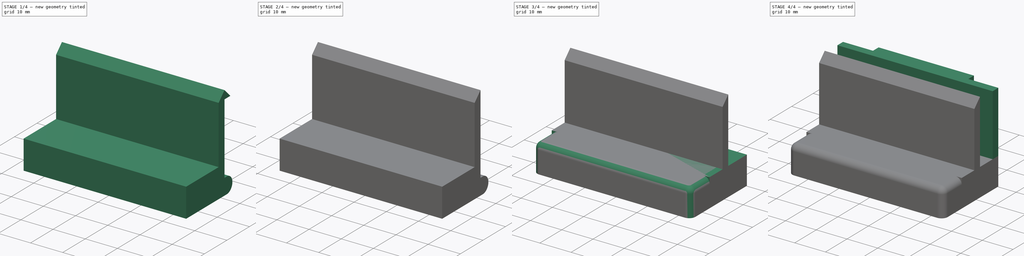
[diagram: build sequence overview — one tinted view per stage of 4, left to right]
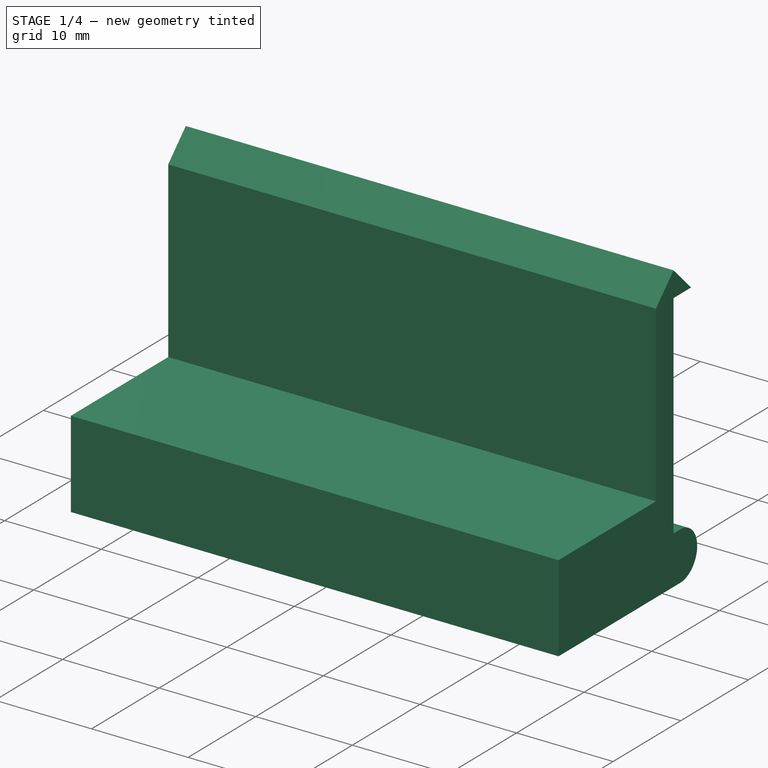
[diagram: stage 1 of 4 — iso view after this stage's code; geometry added in this stage tinted green]
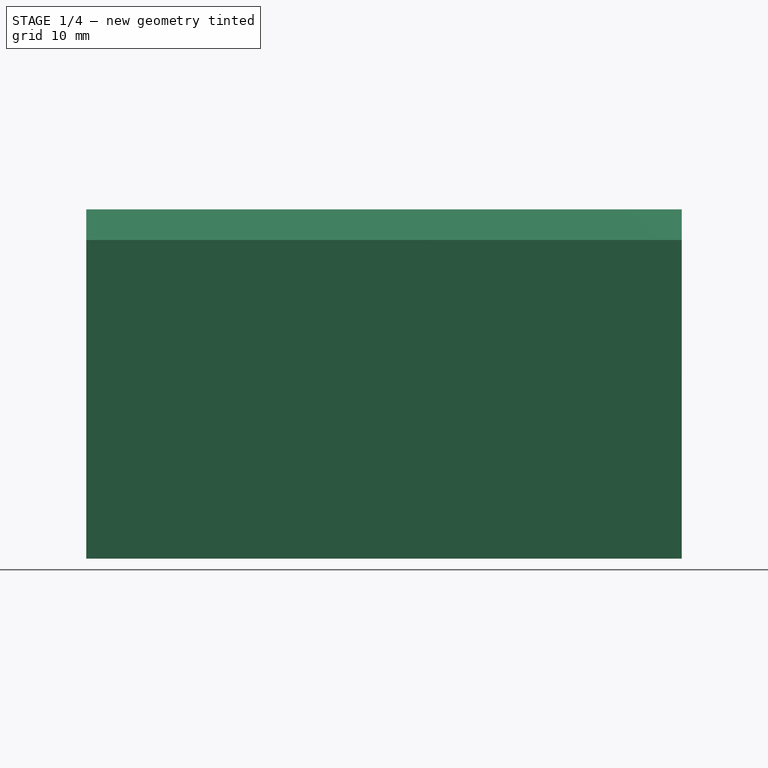
[diagram: stage 1 of 4 — front view after this stage's code; geometry added in this stage tinted green]
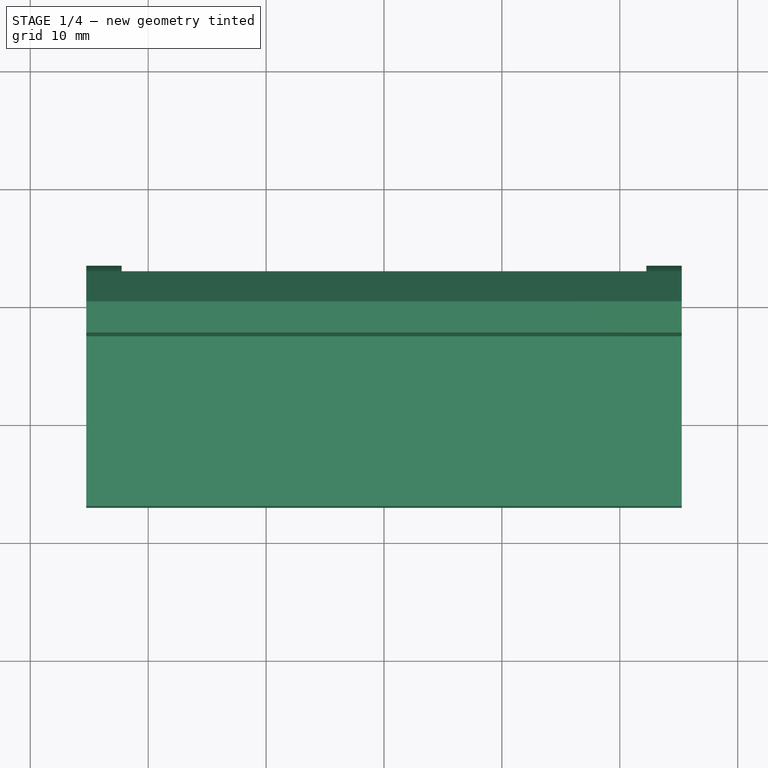
[diagram: stage 1 of 4 — top view after this stage's code; geometry added in this stage tinted green]
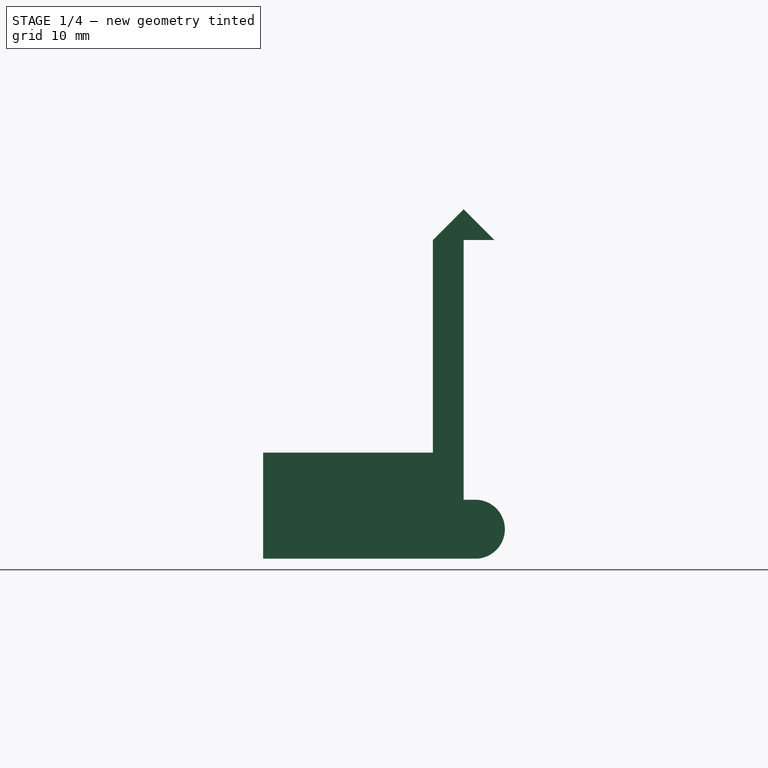
[diagram: stage 1 of 4 — right view after this stage's code; geometry added in this stage tinted green]
FCSTD DOCUMENT  (FreeCAD 0.20R)
Label: GMD-7012 Lock
License: All rights reserved
LicenseURL: http://en.wikipedia.org/wiki/All_rights_reserved
objects: Sketcher::SketchObject×9, PartDesign::Pad×6, PartDesign::Pocket×3, PartDesign::Body×2, App::Part×2, Part::Feature×2, Part::Refine×2, PartDesign::Fillet×1
note: 35 computed .brp shape members not serialized (recipe doc carries the construction recipe); baked Part::Feature solids carry a one-line shape summary decoded from their .brp

FEATURE [PartDesign::Body] Body
  Group = -> [Sketch,Pad,Sketch001,Pad001,Sketch002,Pad002]
  Origin = -> Origin002
  Tip = -> Pad002
FEATURE [App::Part] Part001
  Group = -> [Body]
  Origin = -> Origin001
FEATURE [Part::Feature] Part001_solid  label="Part001 (Solid)"
  shape: bbox 50.5 x 19.6 x 29 mm, 19 faces (baked)
FEATURE [Part::Refine] Part001_solid001  label="Part001 (Solid)001"
  Source = -> Part001_solid
FEATURE [Sketcher::SketchObject] Sketch003
  FullyConstrained = true
  MapMode = 5
  Placement = pos=(0,0,0) rot=(0.57735,0.57735,0.57735;2.0944rad)
  Support = -> [YZ_Plane003]
  sketch-geometry (10):
    g0: LineSegment StartX=-2.6 StartY=27.03 StartZ=0 EndX=-2.6 EndY=9 EndZ=0
    g1: LineSegment StartX=-2.6 StartY=9 StartZ=0 EndX=-17 EndY=9 EndZ=0
    g2: LineSegment StartX=-17 StartY=9 StartZ=0 EndX=-17 EndY=0 EndZ=0
    g3: LineSegment StartX=0 StartY=5 StartZ=0 EndX=0 EndY=27.03 EndZ=0
    g4: LineSegment StartX=0 StartY=27.03 StartZ=0 EndX=2.6 EndY=27.03 EndZ=0
    g5: LineSegment StartX=2.6 StartY=27.03 StartZ=0 EndX=0 EndY=29.63 EndZ=0
    g6: LineSegment StartX=0 StartY=29.63 StartZ=0 EndX=-2.6 EndY=27.03 EndZ=0
    g7: ArcOfCircle CenterX=1 CenterY=2.5 CenterZ=0 NormalX=0 NormalY=0 NormalZ=1 AngleXU=0 Radius=2.5 StartAngle=4.71239 EndAngle=7.85398
    g8: LineSegment StartX=-17 StartY=0 StartZ=0 EndX=1 EndY=0 EndZ=0
    g9: LineSegment StartX=0 StartY=5 StartZ=0 EndX=1 EndY=5 EndZ=0
  constraints (31):
    c: Coincident(g0,g1)
    c: Horizontal(g1)
    c: Coincident(g1,g2)
    c: PointOnObject(g2,g-1)
    c: Vertical(g2)
    c: Vertical(g3)
    c: Coincident(g3,g4)
    c: Horizontal(g4)
    c: Coincident(g4,g5)
    c: Coincident(g5,g6)
    c: Coincident(g0,g6)
    c: DistanceY(g2,g2) = 9
    c: DistanceX(g2,g3) = 17
    c: PointOnObject(g5,g-2)
    c: DistanceX(g0) = -2.6
    c: Parallel(g0,g-2)
    c: DistanceY(g0,g5) = 2.6
    c: Equal(g5,g6)
    c: DistanceY(g4,g5) = 2.6
    c: Diameter(g7) = 5
    c: PointOnObject(g7,g-1)
    c: Coincident(g8,g2)
    c: Coincident(g8,g7)
    c: DistanceX(g7) = 1
    c: PointOnObject(g3,g-2)
    c: Coincident(g9,g3)
    c: Coincident(g9,g7)
    c: Parallel(g9,g-1)
    c: DistanceX(g8,g8) = 18
    c: DistanceX(g9,g9) = 1
    c: DistanceY(g3,g3) = 22.03
FEATURE [PartDesign::Pad] Pad003
  Direction = (1,-2e-16,3e-16)
  Length = 50.5
  Length2 = 10
  Midplane = true
  Placement = pos=(0,0,0) rot=(0.57735,0.57735,0.57735;2.0944rad)
  Profile = -> Sketch003
  ReferenceAxis = -> Sketch003 [N_Axis]
  Type = 0
FEATURE [Sketcher::SketchObject] Sketch008
  ExternalGeometry = -> [Pad003]
  FullyConstrained = true
  MapMode = 5
  Placement = pos=(0,0,0) rot=(0.707107,0.707107,0;3.14159rad)
  Support = -> [Pad003]
  sketch-geometry (4):
    g0: LineSegment StartX=-15 StartY=22.25 StartZ=0 EndX=10 EndY=22.25 EndZ=0
    g1: LineSegment StartX=10 StartY=22.25 StartZ=0 EndX=10 EndY=-22.25 EndZ=0
    g2: LineSegment StartX=10 StartY=-22.25 StartZ=0 EndX=-15 EndY=-22.25 EndZ=0
    g3: LineSegment StartX=-15 StartY=-22.25 StartZ=0 EndX=-15 EndY=22.25 EndZ=0
  constraints (12):
    c: Coincident(g0,g1)
    c: Coincident(g1,g2)
    c: Coincident(g2,g3)
    c: Coincident(g3,g0)
    c: Horizontal(g0)
    c: Horizontal(g2)
    c: Vertical(g1)
    c: Vertical(g3)
    c: DistanceX(g-3,g0) = 2
    c: DistanceY(g0,g-3) = 3
    c: DistanceY(g-4,g2) = 3
    c: DistanceX(g2,g2) = 25
FEATURE [PartDesign::Pocket] Pocket
  BaseFeature = -> Pad003
  Direction = (-4e-16,6e-16,1)
  Length = 5
  Length2 = 5
  Placement = pos=(0,0,0) rot=(0.57735,0.57735,0.57735;2.0944rad)
  Profile = -> Sketch008
  ReferenceAxis = -> Sketch008 [N_Axis]
  Type = 0
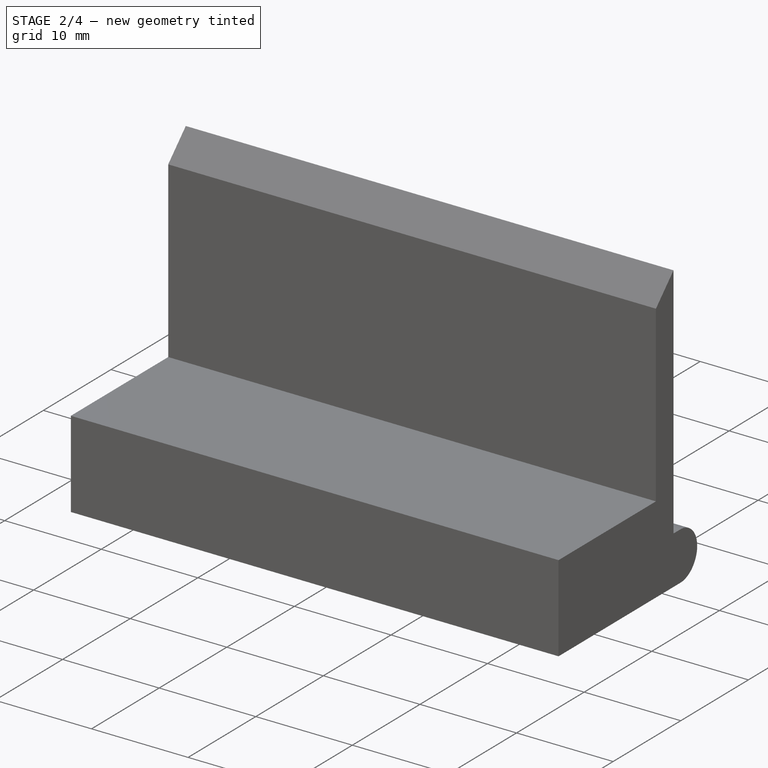
[diagram: stage 2 of 4 — iso view after this stage's code; geometry added in this stage tinted green]
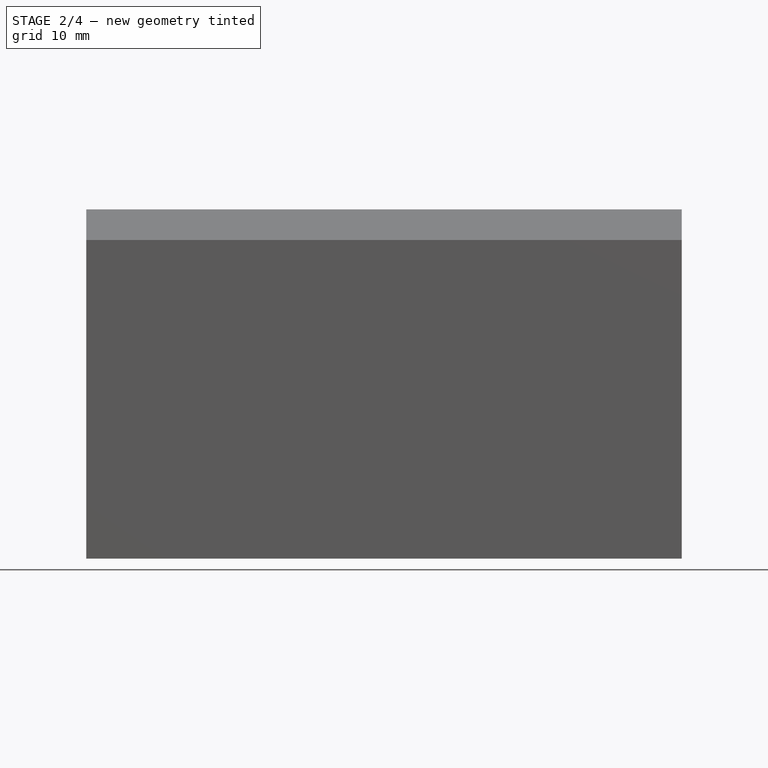
[diagram: stage 2 of 4 — front view after this stage's code; geometry added in this stage tinted green]
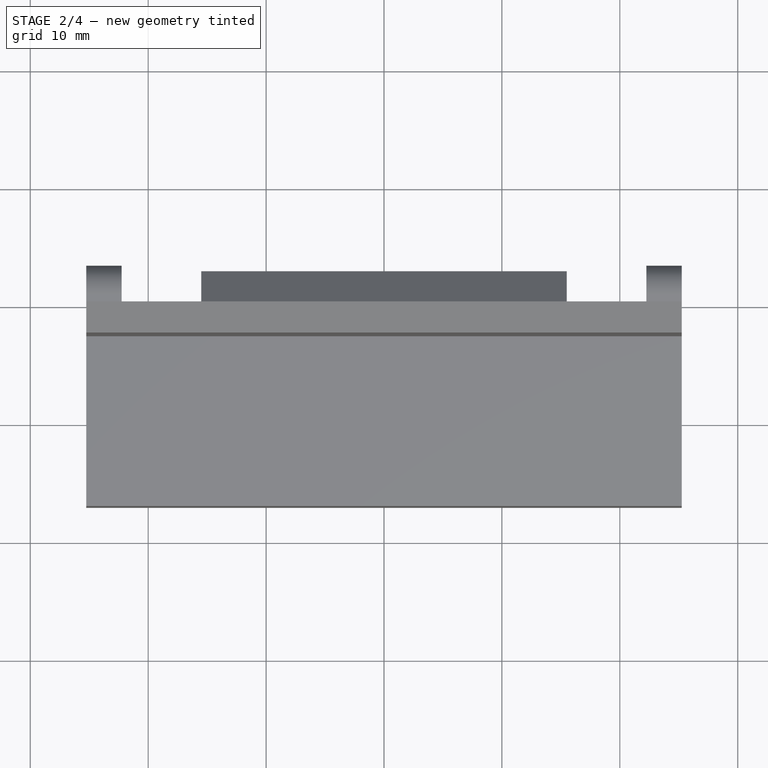
[diagram: stage 2 of 4 — top view after this stage's code; geometry added in this stage tinted green]
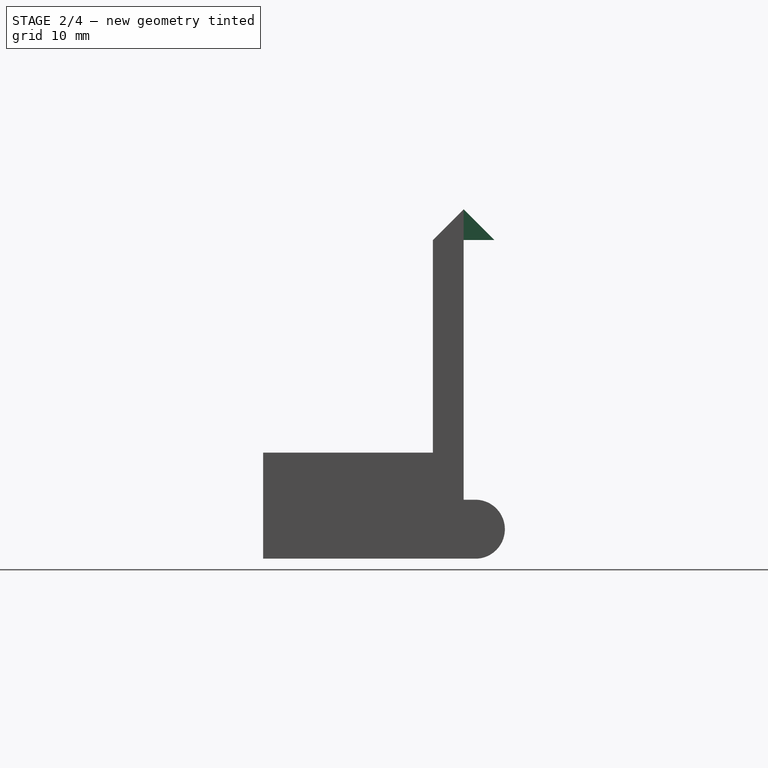
[diagram: stage 2 of 4 — right view after this stage's code; geometry added in this stage tinted green]
FEATURE [Sketcher::SketchObject] Sketch009
  FullyConstrained = true
  MapMode = 5
  Placement = pos=(-3.6e-15,3.3e-15,5) rot=(0.707107,0.707107,0;3.14159rad)
  Support = -> [Pocket]
  sketch-geometry (1):
    g0: Circle CenterX=-4.5 CenterY=0 CenterZ=0 NormalX=0 NormalY=0 NormalZ=1 AngleXU=0 Radius=4
  constraints (3):
    c: PointOnObject(g0,g-1)
    c: Diameter(g0) = 8
    c: DistanceX(g0) = -4.5
FEATURE [PartDesign::Pad] Pad004
  BaseFeature = -> Pocket
  Direction = (7e-16,-7e-16,-1)
  Length = 1
  Length2 = 10
  Placement = pos=(0,0,0) rot=(0.57735,0.57735,0.57735;2.0944rad)
  Profile = -> Sketch009
  ReferenceAxis = -> Sketch009 [N_Axis]
  Type = 0
FEATURE [Sketcher::SketchObject] Sketch010
  ExternalGeometry = -> [Pad004]
  FullyConstrained = true
  MapMode = 5
  Placement = pos=(-4.4e-15,3.4e-15,4) rot=(0.707107,0.707107,0;3.14159rad)
  Support = -> [Pad004]
  sketch-geometry (1):
    g0: Circle CenterX=-4.5 CenterY=2e-16 CenterZ=0 NormalX=0 NormalY=0 NormalZ=1 AngleXU=0 Radius=1.9
  constraints (2):
    c: Coincident(g0,g-3)
    c: Diameter(g0) = 3.8
FEATURE [PartDesign::Pad] Pad005
  BaseFeature = -> Pad004
  Direction = (1.1e-15,-9e-16,-1)
  Length = 4
  Length2 = 10
  Placement = pos=(0,0,0) rot=(0.57735,0.57735,0.57735;2.0944rad)
  Profile = -> Sketch010
  ReferenceAxis = -> Sketch010 [N_Axis]
  Type = 0
FEATURE [Sketcher::SketchObject] Sketch011
  ExternalGeometry = -> [Pad005]
  FullyConstrained = true
  MapMode = 5
  Placement = pos=(-3.75e-14,2.4e-14,27.03) rot=(0.707107,0.707107,0;3.14159rad)
  Support = -> [Pad005]
  sketch-geometry (8):
    g0: LineSegment StartX=1.23e-14 StartY=15.5 StartZ=0 EndX=5 EndY=15.5 EndZ=0
    g1: LineSegment StartX=5 StartY=15.5 StartZ=0 EndX=5 EndY=-15.5 EndZ=0
    g2: LineSegment StartX=5 StartY=-15.5 StartZ=0 EndX=2.22e-14 EndY=-15.5 EndZ=0
    g3: LineSegment StartX=2.24e-14 StartY=-15.5 StartZ=0 EndX=2.24e-14 EndY=-30 EndZ=0
    g4: LineSegment StartX=2.24e-14 StartY=-30 StartZ=0 EndX=22 EndY=-30 EndZ=0
    g5: LineSegment StartX=22 StartY=-30 StartZ=0 EndX=22 EndY=30 EndZ=0
    g6: LineSegment StartX=22 StartY=30 StartZ=0 EndX=1.07e-14 EndY=30 EndZ=0
    g7: LineSegment StartX=1.23e-14 StartY=30 StartZ=0 EndX=1.23e-14 EndY=15.5 EndZ=0
  constraints (22):
    c: PointOnObject(g0,g-3)
    c: Coincident(g0,g1)
    c: Coincident(g1,g2)
    c: Horizontal(g2)
    c: Coincident(g2,g3)
    c: PointOnObject(g3,g-3)
    c: Vertical(g3)
    c: Coincident(g3,g4)
    c: Coincident(g4,g5)
    c: Coincident(g5,g6)
    c: Horizontal(g6)
    c: Coincident(g6,g7)
    c: Coincident(g7,g0)
    c: Vertical(g7)
    c: Parallel(g4,g-1)
    c: DistanceY(g1,g1) = 31
    c: Parallel(g0,g2)
    c: Symmetric(g1,g0,g-1)
    c: DistanceX(g6,g6) = 22
    c: Symmetric(g4,g5,g-1)
    c: DistanceY(g5,g5) = 60
    c: DistanceX(g0,g0) = 5
FEATURE [PartDesign::Pocket] Pocket001
  BaseFeature = -> Pad005
  Direction = (-1.4e-15,9e-16,1)
  Length = 5
  Length2 = 5
  Placement = pos=(0,0,0) rot=(0.57735,0.57735,0.57735;2.0944rad)
  Profile = -> Sketch011
  ReferenceAxis = -> Sketch011 [N_Axis]
  Type = 0
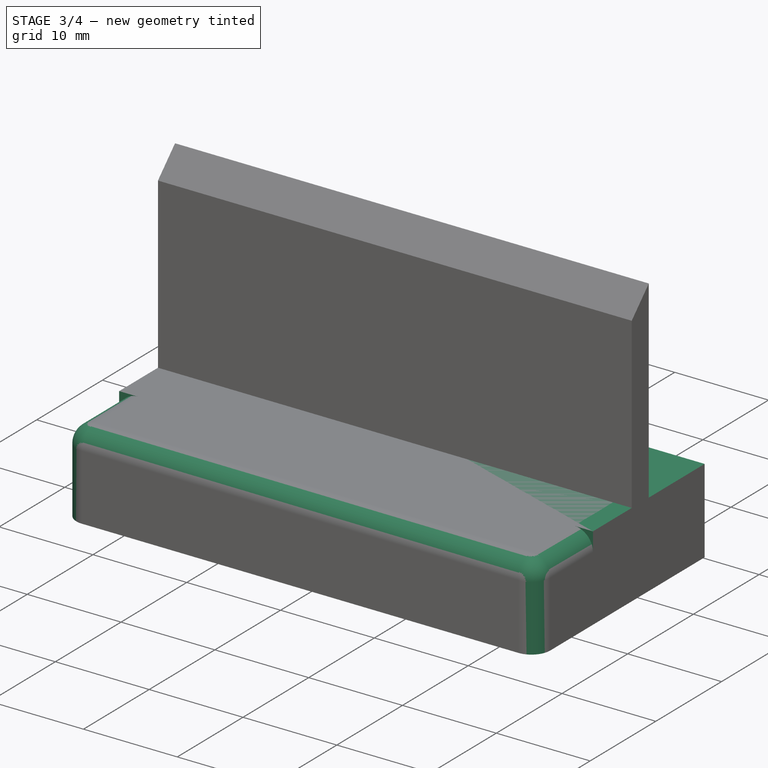
[diagram: stage 3 of 4 — iso view after this stage's code; geometry added in this stage tinted green]
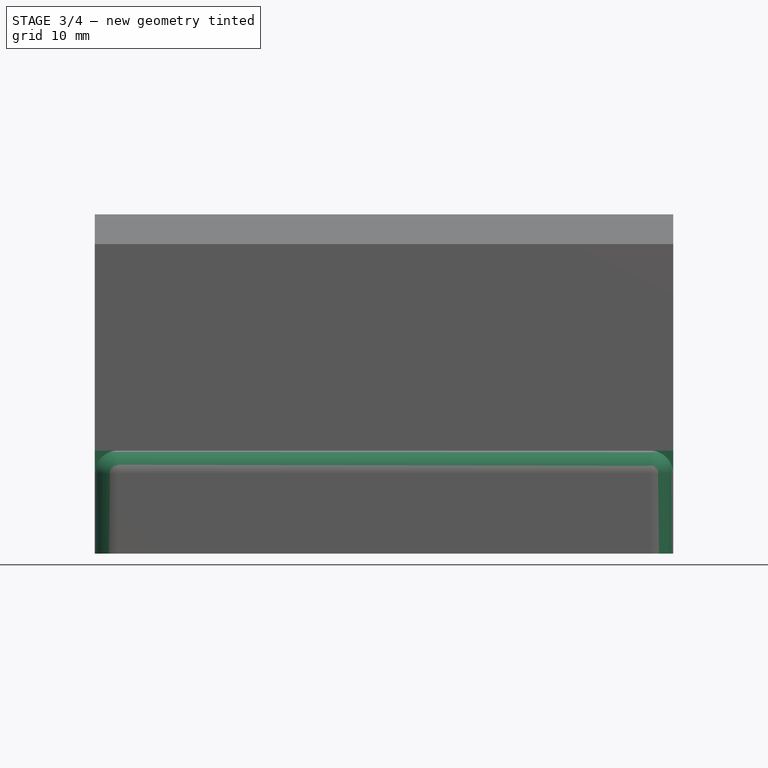
[diagram: stage 3 of 4 — front view after this stage's code; geometry added in this stage tinted green]
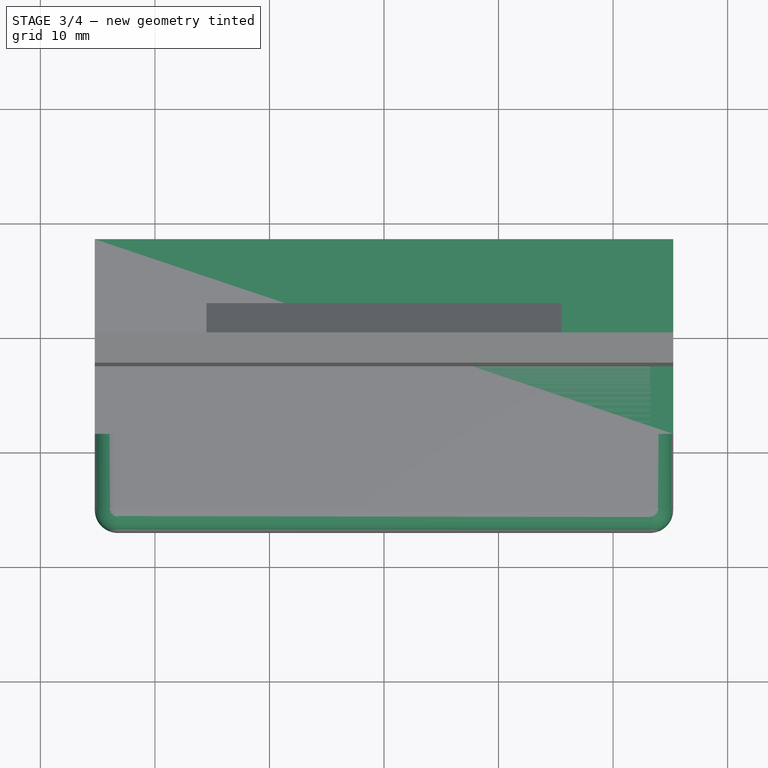
[diagram: stage 3 of 4 — top view after this stage's code; geometry added in this stage tinted green]
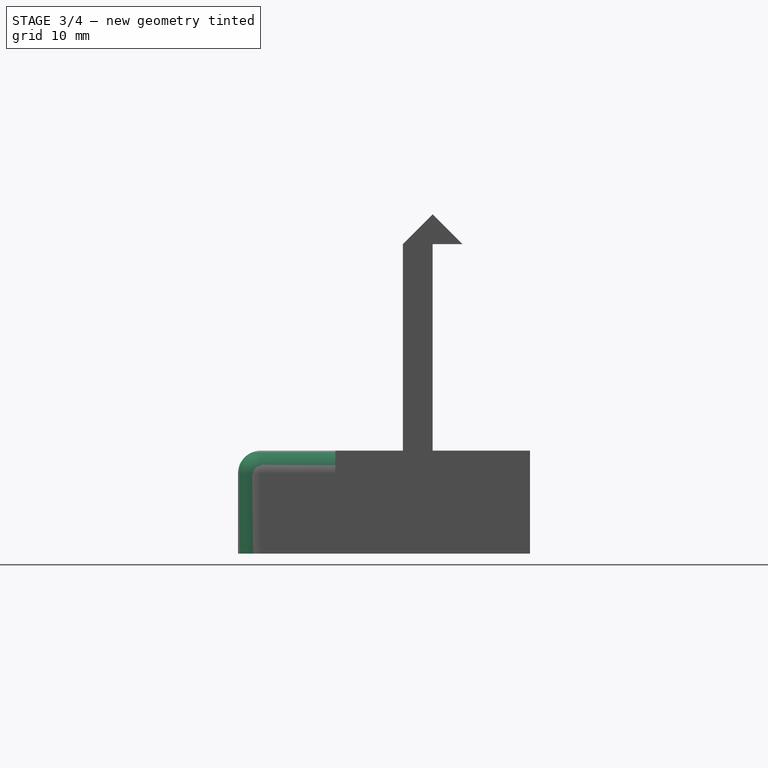
[diagram: stage 3 of 4 — right view after this stage's code; geometry added in this stage tinted green]
FEATURE [Sketcher::SketchObject] Sketch
  FullyConstrained = true
  MapMode = 5
  Support = -> [XY_Plane002]
  sketch-geometry (4):
    g0: LineSegment StartX=-25.25 StartY=8.5 StartZ=0 EndX=25.25 EndY=8.5 EndZ=0
    g1: LineSegment StartX=25.25 StartY=8.5 StartZ=0 EndX=25.25 EndY=-8.5 EndZ=0
    g2: LineSegment StartX=25.25 StartY=-8.5 StartZ=0 EndX=-25.25 EndY=-8.5 EndZ=0
    g3: LineSegment StartX=-25.25 StartY=-8.5 StartZ=0 EndX=-25.25 EndY=8.5 EndZ=0
  constraints (11):
    c: Coincident(g0,g1)
    c: Coincident(g1,g2)
    c: Coincident(g2,g3)
    c: Coincident(g3,g0)
    c: Horizontal(g0)
    c: Horizontal(g2)
    c: Vertical(g1)
    c: Vertical(g3)
    c: DistanceX(g0,g0) = 50.5
    c: DistanceY(g1,g1) = 17
    c: Symmetric(g2,g0,g-1)
FEATURE [PartDesign::Pad] Pad
  Direction = (0,0,1)
  Length = 9
  Length2 = 10
  Profile = -> Sketch
  ReferenceAxis = -> Sketch [N_Axis]
  Type = 0
FEATURE [Sketcher::SketchObject] Sketch012
  ExternalGeometry = -> [Pocket001]
  FullyConstrained = true
  MapMode = 5
  Placement = pos=(25.25,-3.36e-14,1.96e-14) rot=(0.57735,0.57735,0.57735;2.0944rad)
  Support = -> [Pocket001]
  sketch-geometry (1):
    g0: Circle CenterX=1 CenterY=2.5 CenterZ=0 NormalX=0 NormalY=0 NormalZ=1 AngleXU=0 Radius=1
  constraints (2):
    c: Coincident(g0,g-3)
    c: Diameter(g0) = 2
FEATURE [PartDesign::Pocket] Pocket002
  BaseFeature = -> Pocket001
  Direction = (-1,1.3e-15,-9e-16)
  Length = 5
  Length2 = 5
  Placement = pos=(0,0,0) rot=(0.57735,0.57735,0.57735;2.0944rad)
  Profile = -> Sketch012
  ReferenceAxis = -> Sketch012 [N_Axis]
  Type = 1
FEATURE [PartDesign::Fillet] Fillet
  Base = -> Pocket002 [Edge60,Edge38,Edge40,Edge31,Edge33]
  BaseFeature = -> Pocket002
  Placement = pos=(0,0,0) rot=(0.57735,0.57735,0.57735;2.0944rad)
  Radius = 2
  SupportTransform = false
FEATURE [PartDesign::Body] Body001
  Group = -> [Sketch003,Pad003,Sketch008,Pocket,Sketch009,Pad004,Sketch010,Pad005,Sketch011,Pocket001,Sketch012,Pocket002,Fillet]
  Origin = -> Origin003
  Tip = -> Fillet
FEATURE [App::Part] Part
  Group = -> [Body001]
  Origin = -> Origin
FEATURE [Part::Feature] Body001001
  shape: bbox 50.5 x 20.5 x 29.63 mm, 35 faces (baked)
FEATURE [Part::Refine] Body001001001
  Source = -> Body001001
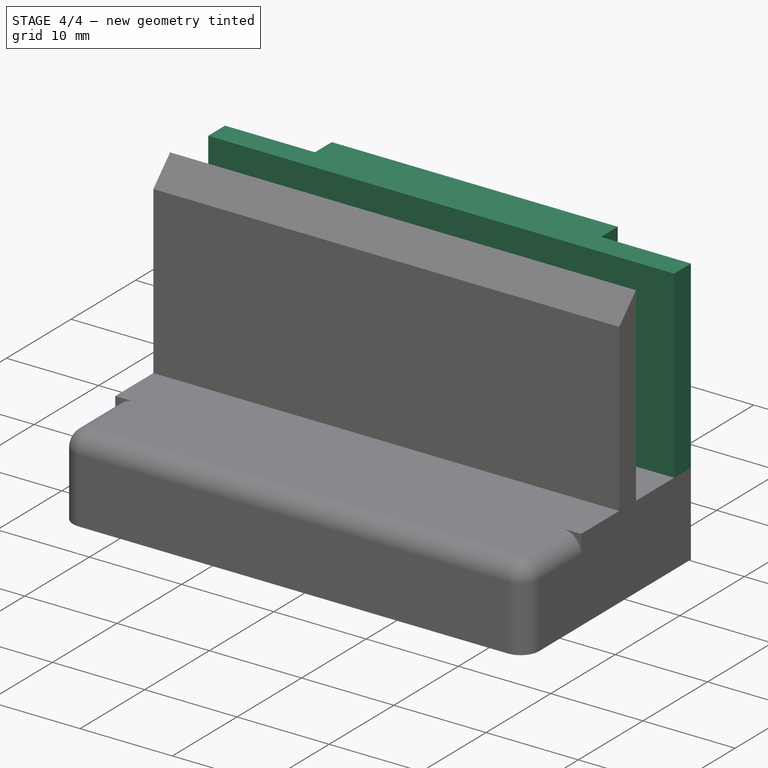
[diagram: stage 4 of 4 — iso view after this stage's code; geometry added in this stage tinted green]
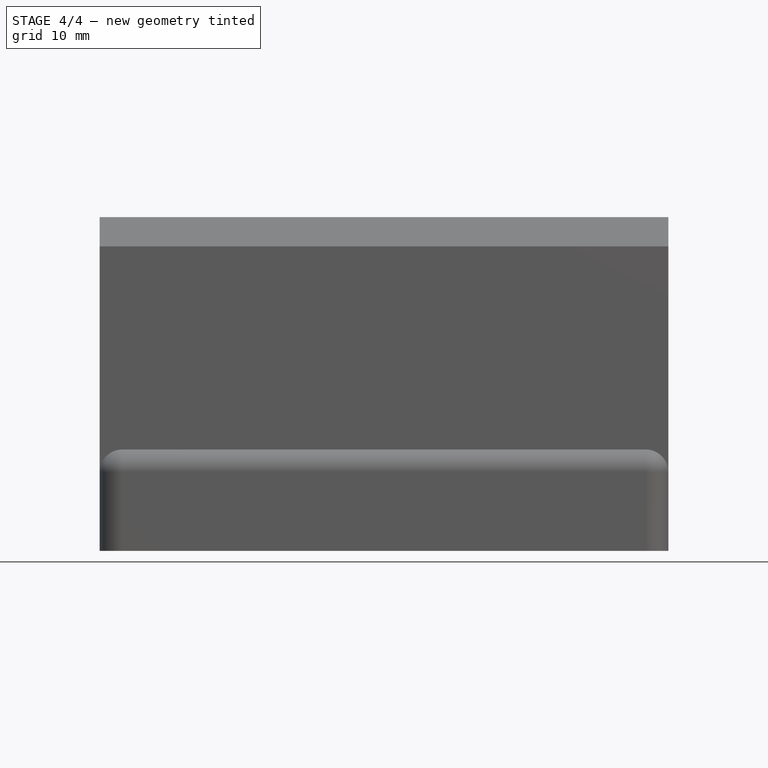
[diagram: stage 4 of 4 — front view after this stage's code; geometry added in this stage tinted green]
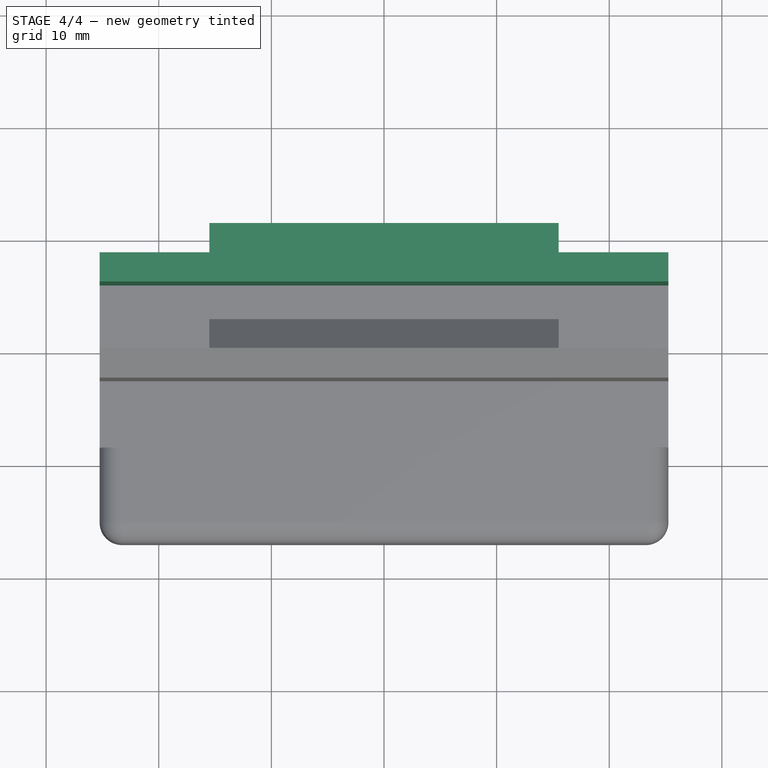
[diagram: stage 4 of 4 — top view after this stage's code; geometry added in this stage tinted green]
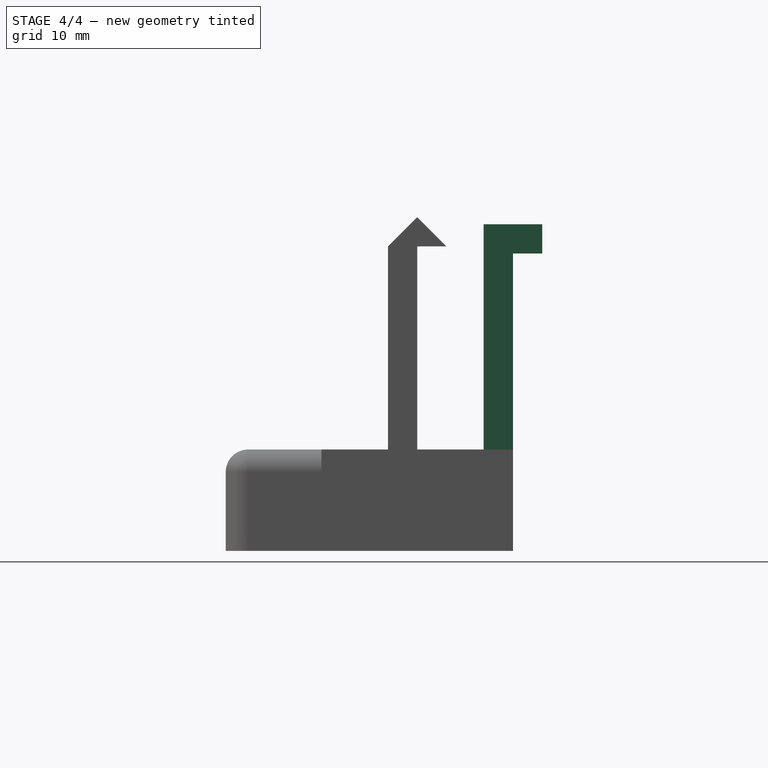
[diagram: stage 4 of 4 — right view after this stage's code; geometry added in this stage tinted green]
FEATURE [Sketcher::SketchObject] Sketch001
  ExternalGeometry = -> [Pad]
  FullyConstrained = true
  MapMode = 5
  Placement = pos=(0,0,0) rot=(0.57735,0.57735,0.57735;2.0944rad)
  Support = -> [YZ_Plane002]
  sketch-geometry (4):
    g0: LineSegment StartX=8.5 StartY=-3.6e-15 StartZ=0 EndX=5.9 EndY=-3.6e-15 EndZ=0
    g1: LineSegment StartX=5.9 StartY=-3.6e-15 StartZ=0 EndX=5.9 EndY=29 EndZ=0
    g2: LineSegment StartX=5.9 StartY=29 StartZ=0 EndX=8.5 EndY=29 EndZ=0
    g3: LineSegment StartX=8.5 StartY=29 StartZ=0 EndX=8.5 EndY=-3.6e-15 EndZ=0
  constraints (11):
    c: Coincident(g0,g1)
    c: Coincident(g1,g2)
    c: Coincident(g2,g3)
    c: Coincident(g3,g0)
    c: Horizontal(g0)
    c: Horizontal(g2)
    c: Vertical(g1)
    c: Vertical(g3)
    c: Coincident(g0,g-4)
    c: DistanceX(g2,g2) = 2.6
    c: DistanceY(g3,g3) = 29
FEATURE [PartDesign::Pad] Pad001
  BaseFeature = -> Pad
  Direction = (1,-2e-16,3e-16)
  Length = 50.5
  Length2 = 10
  Midplane = true
  Profile = -> Sketch001
  ReferenceAxis = -> Sketch001 [N_Axis]
  Type = 0
FEATURE [Sketcher::SketchObject] Sketch002
  ExternalGeometry = -> [Pad001]
  FullyConstrained = true
  MapMode = 5
  Placement = pos=(1.9e-15,8.5,-1.9e-15) rot=(0,0.707107,0.707107;3.14159rad)
  Support = -> [Pad001]
  sketch-geometry (4):
    g0: LineSegment StartX=-15.5 StartY=29 StartZ=0 EndX=15.5 EndY=29 EndZ=0
    g1: LineSegment StartX=15.5 StartY=29 StartZ=0 EndX=15.5 EndY=26.4 EndZ=0
    g2: LineSegment StartX=15.5 StartY=26.4 StartZ=0 EndX=-15.5 EndY=26.4 EndZ=0
    g3: LineSegment StartX=-15.5 StartY=26.4 StartZ=0 EndX=-15.5 EndY=29 EndZ=0
  constraints (11):
    c: Coincident(g0,g1)
    c: Coincident(g1,g2)
    c: Coincident(g2,g3)
    c: Coincident(g3,g0)
    c: Horizontal(g0)
    c: Vertical(g1)
    c: Vertical(g3)
    c: PointOnObject(g0,g-3)
    c: Symmetric(g1,g2,g-2)
    c: DistanceX(g2,g2) = 31
    c: DistanceY(g1,g1) = 2.6
FEATURE [PartDesign::Pad] Pad002
  BaseFeature = -> Pad001
  Direction = (2e-16,1,-2e-16)
  Length = 2.6
  Length2 = 10
  Profile = -> Sketch002
  ReferenceAxis = -> Sketch002 [N_Axis]
  Type = 0
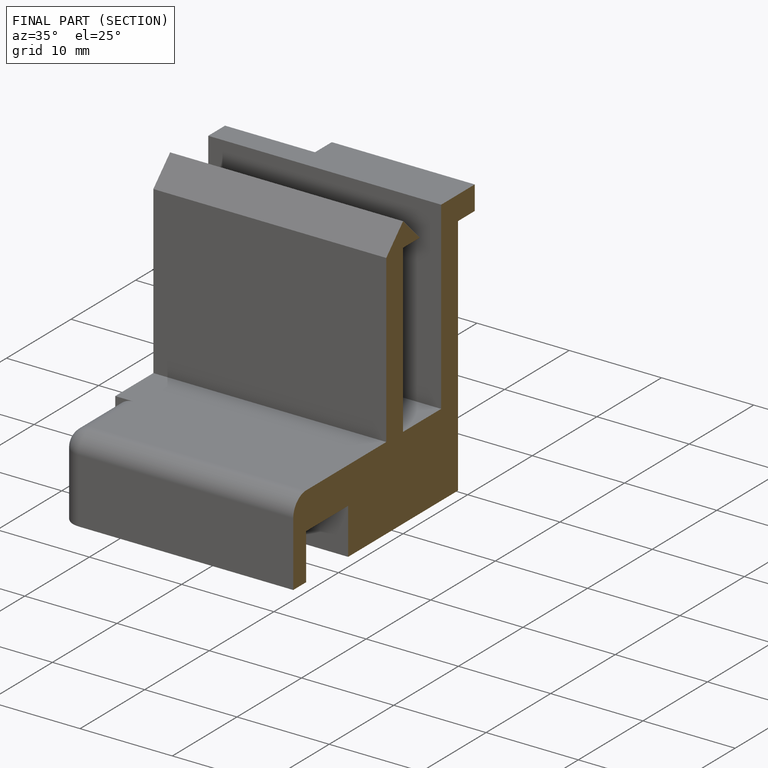
[diagram: finished part — half-section view (interior)]
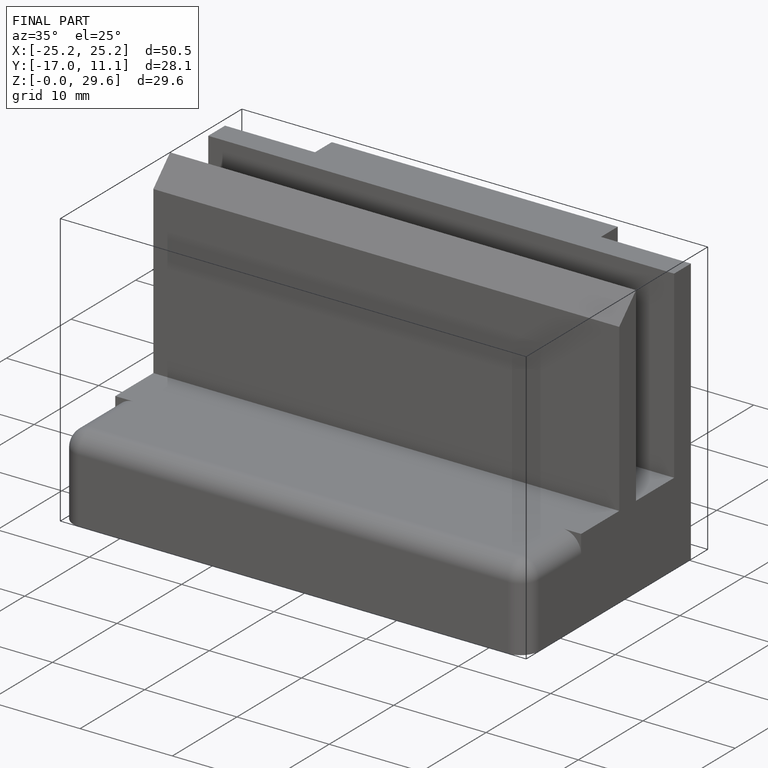
[diagram: finished part — iso view with bounding-box wireframe]
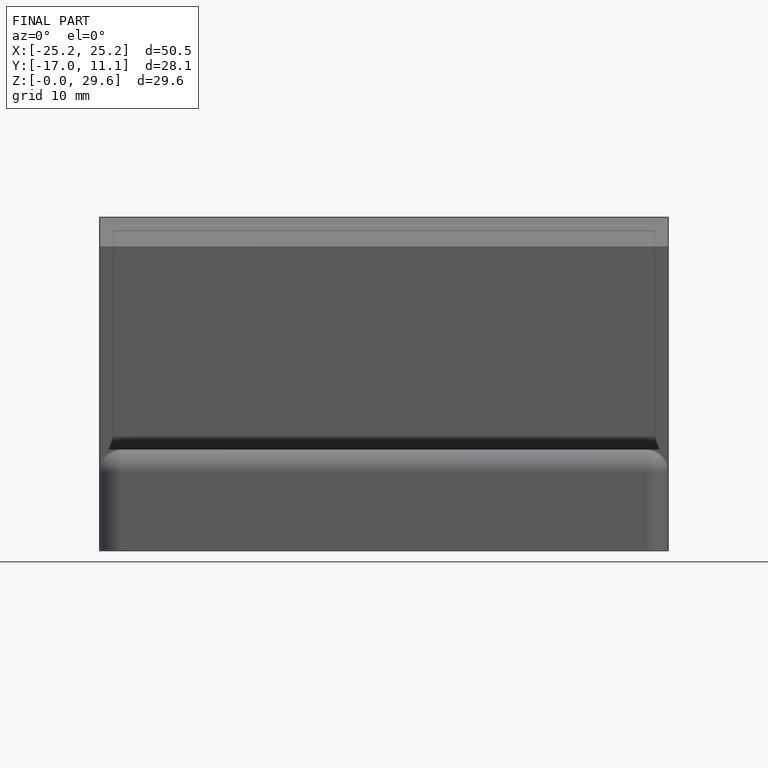
[diagram: finished part — front view with bounding-box wireframe]
